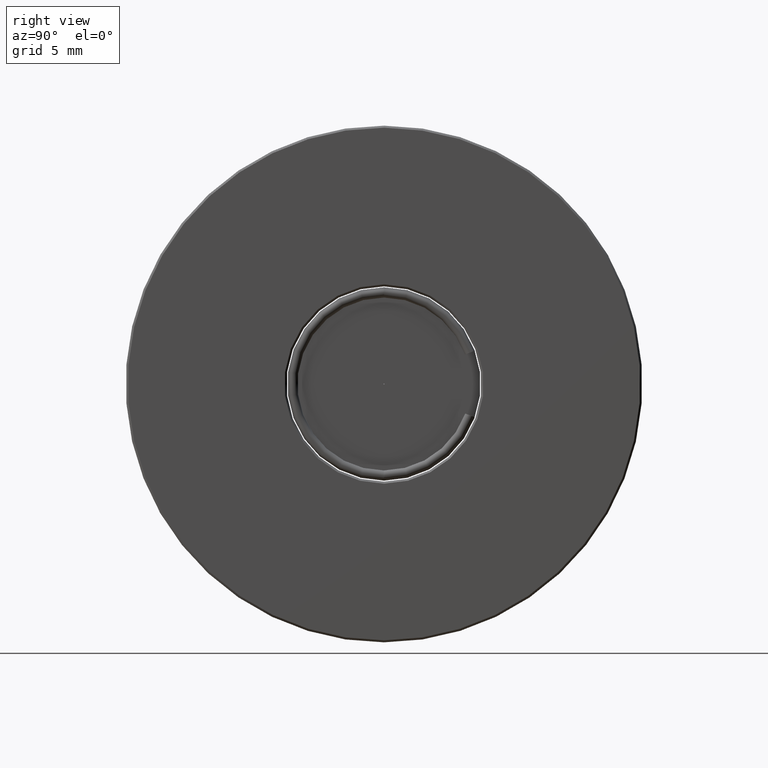
[diagram: clean part render]
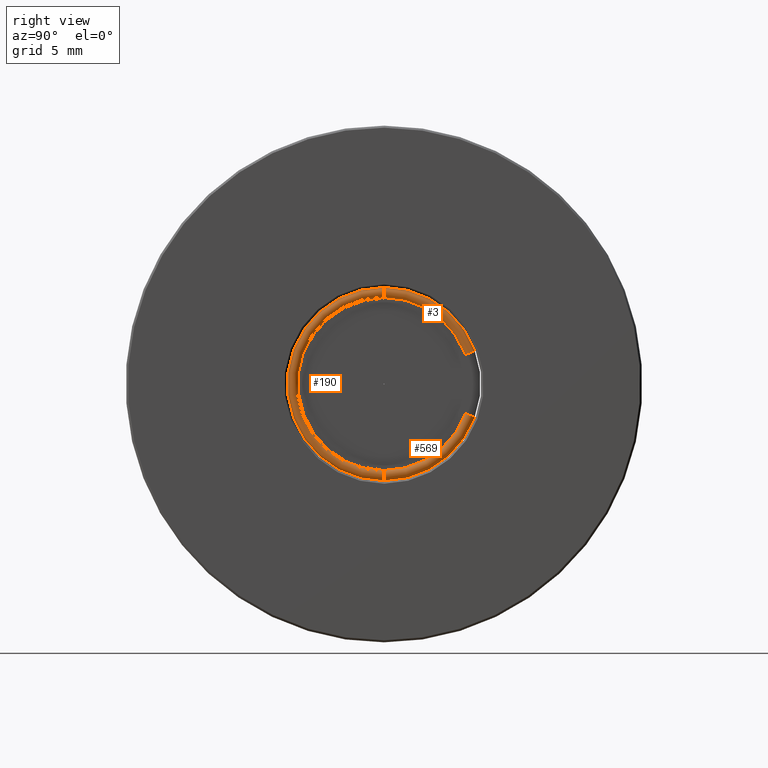
[diagram: same view with one multi-face feature highlighted, each face labeled with its STEP entity id]
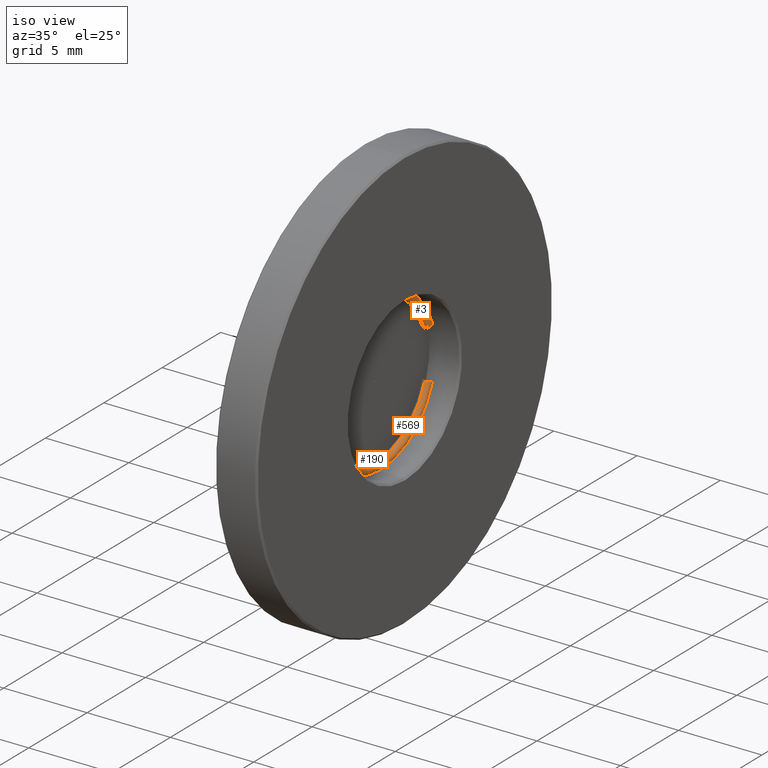
[diagram: same view with one multi-face feature highlighted, each face labeled with its STEP entity id]
A machine part, right view. The highlighted faces form ONE feature: a constant-radius fillet chain: 3 tangent blend faces with common blend radius 0.25 mm. The faces share edges in the B-rep.
A second angle (iso view) of the same feature is appended — it is thin or edge-on in the first view.
Their STEP definitions:
[1] entity #3 (Torus):
#3 = ADVANCED_FACE ( 'NONE', ( #358 ), #343, .T. ) ;
#4 = EDGE_CURVE ( 'NONE', #362, #690, #654, .T. ) ;
#8 = DIRECTION ( 'NONE',  ( 3.061276722312011406E-15, 1.000000000000000000, 0.0000000000000000000 ) ) ;
#75 = DIRECTION ( 'NONE',  ( -1.054662389422715826E-17, 0.3420201432638126371, -0.9396926208084220855 ) ) ;
#78 = DIRECTION ( 'NONE',  ( 1.000000000000000000, -2.997602166487921476E-15, -1.332267629309052594E-15 ) ) ;
#95 = EDGE_CURVE ( 'NONE', #690, #420, #146, .T. ) ;
#113 = EDGE_CURVE ( 'NONE', #489, #420, #713, .T. ) ;
#115 = EDGE_LOOP ( 'NONE', ( #527, #327, #441, #181 ) ) ;
#146 = CIRCLE ( 'NONE', #486, 0.2500000000000002220 ) ;
#151 = CARTESIAN_POINT ( 'NONE',  ( -4.034863851253234657, 1.436758841397764552, 30.14999999999998437 ) ) ;
#181 = ORIENTED_EDGE ( 'NONE', *, *, #113, .F. ) ;
#186 = CARTESIAN_POINT ( 'NONE',  ( -4.034863851253226663, 5.430452479520951670, 26.85358560887114621 ) ) ;
#189 = CARTESIAN_POINT ( 'NONE',  ( -4.034863851253261302, 5.665375634723053722, 26.93909064468709857 ) ) ;
#193 = DIRECTION ( 'NONE',  ( 1.000000000000000000, -2.997602166487921476E-15, -1.332267629309052594E-15 ) ) ;
#248 = DIRECTION ( 'NONE',  ( 3.469446951953614189E-15, -0.9396926208084209753, -0.3420201432638159122 ) ) ;
#251 = CARTESIAN_POINT ( 'NONE',  ( -4.034863851253239986, 1.436758841085141514, 25.39999999999998437 ) ) ;
#276 = AXIS2_PLACEMENT_3D ( 'NONE', #428, #433, #670 ) ;
#327 = ORIENTED_EDGE ( 'NONE', *, *, #4, .T. ) ;
#343 = TOROIDAL_SURFACE ( 'NONE', #432, 4.500000000000001776, 0.2499999999999994726 ) ;
#358 = FACE_OUTER_BOUND ( 'NONE', #115, .T. ) ;
#362 = VERTEX_POINT ( 'NONE', #370 ) ;
#370 = CARTESIAN_POINT ( 'NONE',  ( -4.034863851253225775, 5.900298789925161103, 27.02459568050305094 ) ) ;
#378 = CARTESIAN_POINT ( 'NONE',  ( -4.034863851253239986, 1.436758841085141514, 25.39999999999998437 ) ) ;
#384 = CARTESIAN_POINT ( 'NONE',  ( -4.034863851253237321, 1.436758841364856876, 29.64999999999998437 ) ) ;
#420 = VERTEX_POINT ( 'NONE', #384 ) ;
#428 = CARTESIAN_POINT ( 'NONE',  ( -4.034863851253239986, 1.436758841085141514, 25.39999999999998437 ) ) ;
#432 = AXIS2_PLACEMENT_3D ( 'NONE', #251, #193, #743 ) ;
#433 = DIRECTION ( 'NONE',  ( 1.000000000000000000, -2.997602166487921476E-15, -1.332267629309052594E-15 ) ) ;
#441 = ORIENTED_EDGE ( 'NONE', *, *, #95, .T. ) ;
#486 = AXIS2_PLACEMENT_3D ( 'NONE', #518, #747, #684 ) ;
#489 = VERTEX_POINT ( 'NONE', #186 ) ;
#500 = AXIS2_PLACEMENT_3D ( 'NONE', #378, #78, #8 ) ;
#518 = CARTESIAN_POINT ( 'NONE',  ( -4.034863851253245315, 1.436758841381310825, 29.89999999999998437 ) ) ;
#527 = ORIENTED_EDGE ( 'NONE', *, *, #553, .F. ) ;
#553 = EDGE_CURVE ( 'NONE', #362, #489, #598, .T. ) ;
#598 = CIRCLE ( 'NONE', #755, 0.2500000000000000000 ) ;
#654 = CIRCLE ( 'NONE', #276, 4.750000000000000888 ) ;
#670 = DIRECTION ( 'NONE',  ( 2.921639538487253472E-15, 1.000000000000000000, 0.0000000000000000000 ) ) ;
#684 = DIRECTION ( 'NONE',  ( 0.0000000000000000000, 6.581540867855999654E-11, 1.000000000000000000 ) ) ;
#690 = VERTEX_POINT ( 'NONE', #151 ) ;
#713 = CIRCLE ( 'NONE', #500, 4.250000000000001776 ) ;
#743 = DIRECTION ( 'NONE',  ( -1.332267629506340790E-15, -6.581527172670668233E-11, -1.000000000000000000 ) ) ;
#747 = DIRECTION ( 'NONE',  ( 2.997602166400237614E-15, 1.000000000000000000, -6.581539236536173561E-11 ) ) ;
#755 = AXIS2_PLACEMENT_3D ( 'NONE', #189, #75, #248 ) ;
[2] entity #190 (Torus):
#7 = AXIS2_PLACEMENT_3D ( 'NONE', #519, #462, #154 ) ;
#41 = DIRECTION ( 'NONE',  ( -1.332267629506340790E-15, -6.581527172670668233E-11, -1.000000000000000000 ) ) ;
#66 = VERTEX_POINT ( 'NONE', #137 ) ;
#71 = ORIENTED_EDGE ( 'NONE', *, *, #206, .F. ) ;
#95 = EDGE_CURVE ( 'NONE', #690, #420, #146, .T. ) ;
#106 = VERTEX_POINT ( 'NONE', #239 ) ;
#129 = CIRCLE ( 'NONE', #468, 4.750000000000000888 ) ;
#137 = CARTESIAN_POINT ( 'NONE',  ( -4.034863851253246203, 1.436758840772518919, 20.64999999999998437 ) ) ;
#142 = EDGE_LOOP ( 'NONE', ( #623, #638, #530, #71 ) ) ;
#145 = CIRCLE ( 'NONE', #7, 0.2500000000000002220 ) ;
#146 = CIRCLE ( 'NONE', #486, 0.2500000000000002220 ) ;
#151 = CARTESIAN_POINT ( 'NONE',  ( -4.034863851253234657, 1.436758841397764552, 30.14999999999998437 ) ) ;
#154 = DIRECTION ( 'NONE',  ( 0.0000000000000000000, -6.581540867855999654E-11, -1.000000000000000000 ) ) ;
#164 = EDGE_CURVE ( 'NONE', #690, #66, #129, .T. ) ;
#190 = ADVANCED_FACE ( 'NONE', ( #295 ), #785, .T. ) ;
#206 = EDGE_CURVE ( 'NONE', #420, #106, #250, .T. ) ;
#239 = CARTESIAN_POINT ( 'NONE',  ( -4.034863851253239986, 1.436758840805426596, 21.14999999999998437 ) ) ;
#250 = CIRCLE ( 'NONE', #576, 4.250000000000001776 ) ;
#295 = FACE_OUTER_BOUND ( 'NONE', #142, .T. ) ;
#384 = CARTESIAN_POINT ( 'NONE',  ( -4.034863851253237321, 1.436758841364856876, 29.64999999999998437 ) ) ;
#415 = DIRECTION ( 'NONE',  ( 2.921639538487253472E-15, 1.000000000000000000, 0.0000000000000000000 ) ) ;
#420 = VERTEX_POINT ( 'NONE', #384 ) ;
#462 = DIRECTION ( 'NONE',  ( -2.997602166400238009E-15, -1.000000000000000000, 6.581526990068181500E-11 ) ) ;
#468 = AXIS2_PLACEMENT_3D ( 'NONE', #531, #590, #415 ) ;
#486 = AXIS2_PLACEMENT_3D ( 'NONE', #518, #747, #684 ) ;
#518 = CARTESIAN_POINT ( 'NONE',  ( -4.034863851253245315, 1.436758841381310825, 29.89999999999998437 ) ) ;
#519 = CARTESIAN_POINT ( 'NONE',  ( -4.034863851253234657, 1.436758840788972647, 20.89999999999998437 ) ) ;
#530 = ORIENTED_EDGE ( 'NONE', *, *, #678, .T. ) ;
#531 = CARTESIAN_POINT ( 'NONE',  ( -4.034863851253239986, 1.436758841085141514, 25.39999999999998437 ) ) ;
#538 = DIRECTION ( 'NONE',  ( 3.061276722312011406E-15, 1.000000000000000000, 0.0000000000000000000 ) ) ;
#562 = AXIS2_PLACEMENT_3D ( 'NONE', #653, #585, #41 ) ;
#576 = AXIS2_PLACEMENT_3D ( 'NONE', #784, #702, #538 ) ;
#585 = DIRECTION ( 'NONE',  ( 1.000000000000000000, -2.997602166487921476E-15, -1.332267629309052594E-15 ) ) ;
#590 = DIRECTION ( 'NONE',  ( 1.000000000000000000, -2.997602166487921476E-15, -1.332267629309052594E-15 ) ) ;
#623 = ORIENTED_EDGE ( 'NONE', *, *, #95, .F. ) ;
#638 = ORIENTED_EDGE ( 'NONE', *, *, #164, .T. ) ;
#653 = CARTESIAN_POINT ( 'NONE',  ( -4.034863851253239986, 1.436758841085141514, 25.39999999999998437 ) ) ;
#678 = EDGE_CURVE ( 'NONE', #66, #106, #145, .T. ) ;
#684 = DIRECTION ( 'NONE',  ( 0.0000000000000000000, 6.581540867855999654E-11, 1.000000000000000000 ) ) ;
#690 = VERTEX_POINT ( 'NONE', #151 ) ;
#702 = DIRECTION ( 'NONE',  ( 1.000000000000000000, -2.997602166487921476E-15, -1.332267629309052594E-15 ) ) ;
#747 = DIRECTION ( 'NONE',  ( 2.997602166400237614E-15, 1.000000000000000000, -6.581539236536173561E-11 ) ) ;
#784 = CARTESIAN_POINT ( 'NONE',  ( -4.034863851253239986, 1.436758841085141514, 25.39999999999998437 ) ) ;
#785 = TOROIDAL_SURFACE ( 'NONE', #562, 4.500000000000001776, 0.2499999999999994726 ) ;
[3] entity #569 (Torus):
#7 = AXIS2_PLACEMENT_3D ( 'NONE', #519, #462, #154 ) ;
#10 = DIRECTION ( 'NONE',  ( 1.000000000000000000, -2.997602166487921476E-15, -1.332267629309052594E-15 ) ) ;
#40 = ORIENTED_EDGE ( 'NONE', *, *, #147, .F. ) ;
#66 = VERTEX_POINT ( 'NONE', #137 ) ;
#74 = CIRCLE ( 'NONE', #395, 4.750000000000000888 ) ;
#96 = DIRECTION ( 'NONE',  ( 3.469446951953611033E-15, -0.9396926207634005435, 0.3420201433875083574 ) ) ;
#97 = ORIENTED_EDGE ( 'NONE', *, *, #208, .T. ) ;
#106 = VERTEX_POINT ( 'NONE', #239 ) ;
#133 = TOROIDAL_SURFACE ( 'NONE', #782, 4.500000000000001776, 0.2499999999999994726 ) ;
#137 = CARTESIAN_POINT ( 'NONE',  ( -4.034863851253246203, 1.436758840772518919, 20.64999999999998437 ) ) ;
#145 = CIRCLE ( 'NONE', #7, 0.2500000000000002220 ) ;
#147 = EDGE_CURVE ( 'NONE', #106, #775, #616, .T. ) ;
#153 = CARTESIAN_POINT ( 'NONE',  ( -4.034863851253239986, 1.436758841085141514, 25.39999999999998437 ) ) ;
#154 = DIRECTION ( 'NONE',  ( 0.0000000000000000000, -6.581540867855999654E-11, -1.000000000000000000 ) ) ;
#168 = EDGE_LOOP ( 'NONE', ( #798, #792, #97, #40 ) ) ;
#208 = EDGE_CURVE ( 'NONE', #220, #775, #419, .T. ) ;
#220 = VERTEX_POINT ( 'NONE', #222 ) ;
#222 = CARTESIAN_POINT ( 'NONE',  ( -4.034863851253229328, 5.900298789711298397, 23.77540431890929895 ) ) ;
#227 = DIRECTION ( 'NONE',  ( 2.921639538487253472E-15, 1.000000000000000000, 0.0000000000000000000 ) ) ;
#239 = CARTESIAN_POINT ( 'NONE',  ( -4.034863851253239986, 1.436758840805426596, 21.14999999999998437 ) ) ;
#262 = CARTESIAN_POINT ( 'NONE',  ( -4.034863851253239986, 1.436758841085141514, 25.39999999999998437 ) ) ;
#285 = CARTESIAN_POINT ( 'NONE',  ( -4.034863851253261302, 5.665375634520459336, 23.86090935475617059 ) ) ;
#286 = CARTESIAN_POINT ( 'NONE',  ( -4.034863851253239986, 1.436758841085141514, 25.39999999999998437 ) ) ;
#351 = FACE_OUTER_BOUND ( 'NONE', #168, .T. ) ;
#395 = AXIS2_PLACEMENT_3D ( 'NONE', #286, #586, #227 ) ;
#419 = CIRCLE ( 'NONE', #629, 0.2500000000000002220 ) ;
#462 = DIRECTION ( 'NONE',  ( -2.997602166400238009E-15, -1.000000000000000000, 6.581526990068181500E-11 ) ) ;
#469 = DIRECTION ( 'NONE',  ( 2.305737067885818465E-15, -0.3420201433875043051, -0.9396926207634020978 ) ) ;
#481 = CARTESIAN_POINT ( 'NONE',  ( -4.034863851253229328, 5.430452479329598070, 23.94641439060304933 ) ) ;
#519 = CARTESIAN_POINT ( 'NONE',  ( -4.034863851253234657, 1.436758840788972647, 20.89999999999998437 ) ) ;
#569 = ADVANCED_FACE ( 'NONE', ( #351 ), #133, .T. ) ;
#586 = DIRECTION ( 'NONE',  ( 1.000000000000000000, -2.997602166487921476E-15, -1.332267629309052594E-15 ) ) ;
#616 = CIRCLE ( 'NONE', #666, 4.250000000000001776 ) ;
#629 = AXIS2_PLACEMENT_3D ( 'NONE', #285, #469, #96 ) ;
#666 = AXIS2_PLACEMENT_3D ( 'NONE', #153, #780, #776 ) ;
#678 = EDGE_CURVE ( 'NONE', #66, #106, #145, .T. ) ;
#688 = DIRECTION ( 'NONE',  ( -1.332267629506340790E-15, -6.581527172670668233E-11, -1.000000000000000000 ) ) ;
#775 = VERTEX_POINT ( 'NONE', #481 ) ;
#776 = DIRECTION ( 'NONE',  ( 3.061276722312011406E-15, 1.000000000000000000, 0.0000000000000000000 ) ) ;
#780 = DIRECTION ( 'NONE',  ( 1.000000000000000000, -2.997602166487921476E-15, -1.332267629309052594E-15 ) ) ;
#782 = AXIS2_PLACEMENT_3D ( 'NONE', #262, #10, #688 ) ;
#792 = ORIENTED_EDGE ( 'NONE', *, *, #797, .T. ) ;
#797 = EDGE_CURVE ( 'NONE', #66, #220, #74, .T. ) ;
#798 = ORIENTED_EDGE ( 'NONE', *, *, #678, .F. ) ;